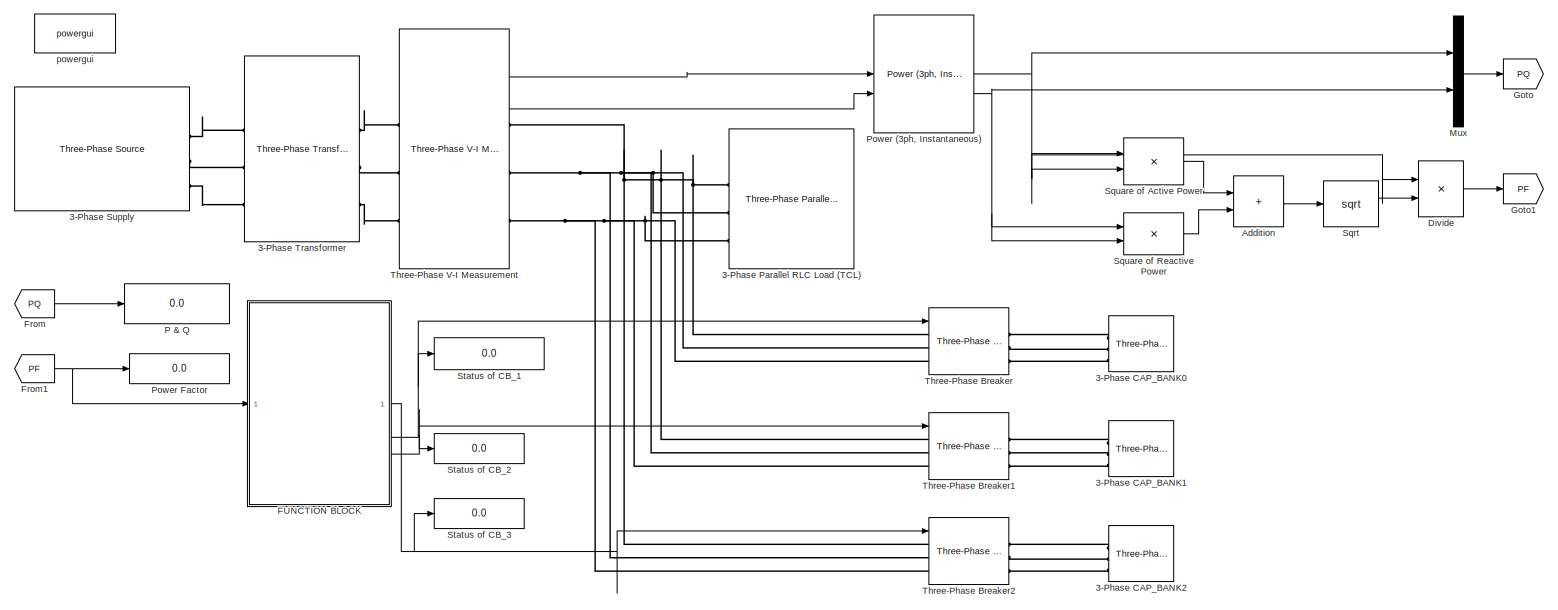
[diagram: root canvas - part 1/1, most of the canvas]
MODEL slx_506f2f6c2f00
KIND model
CONFIG AbsTol = auto
CONFIG EnableMultiTasking = off
CONFIG FixedStep = auto
CONFIG MaxStep = auto
CONFIG MinStep = auto
CONFIG RelTol = 1e-3
CONFIG SampleTimeConstraint = Unconstrained
CONFIG SolverName = ode23tb
CONFIG StartTime = 0.0
CONFIG StopTime = 0.2
BLOCK [Reference] 3-Phase CAP_BANK0  REF=spsThreePhaseParallelRLCLoadLib/Three-Phase
Parallel RLC Load
  AttributesFormatString = \n
  NameLocation = top
  SourceBlock = spsThreePhaseParallelRLCLoadLib/Three-Phase\nParallel RLC Load
  SourceType = Three-Phase Parallel RLC Load
BLOCK [Reference] 3-Phase CAP_BANK1  REF=spsThreePhaseParallelRLCLoadLib/Three-Phase
Parallel RLC Load
  AttributesFormatString = \n
  NameLocation = top
  SourceBlock = spsThreePhaseParallelRLCLoadLib/Three-Phase\nParallel RLC Load
  SourceType = Three-Phase Parallel RLC Load
BLOCK [Reference] 3-Phase CAP_BANK2  REF=spsThreePhaseParallelRLCLoadLib/Three-Phase
Parallel RLC Load
  AttributesFormatString = \n
  NameLocation = top
  SourceBlock = spsThreePhaseParallelRLCLoadLib/Three-Phase\nParallel RLC Load
  SourceType = Three-Phase Parallel RLC Load
BLOCK [Reference] 3-Phase Parallel RLC Load (TCL)  REF=spsThreePhaseParallelRLCLoadLib/Three-Phase
Parallel RLC Load
  AttributesFormatString = \n
  NameLocation = top
  SourceBlock = spsThreePhaseParallelRLCLoadLib/Three-Phase\nParallel RLC Load
  SourceType = Three-Phase Parallel RLC Load
BLOCK [Reference] 3-Phase Supply  REF=spsThreePhaseSourceLib/Three-Phase Source
  SourceBlock = spsThreePhaseSourceLib/Three-Phase Source
  SourceType = Three-Phase Source
BLOCK [Reference] 3-Phase Transformer   REF=spsThreePhaseTransformerTwoWindingsLib/Three-Phase
Transformer
(Two Windings)
  SourceBlock = spsThreePhaseTransformerTwoWindingsLib/Three-Phase\nTransformer\n(Two Windings)
  SourceType = Three-Phase Transformer (Two Windings)
BLOCK [Sum] Addition
  IconShape = rectangular
BLOCK [Product] Divide
  Inputs = */
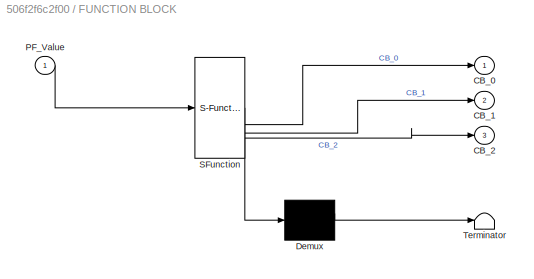
BLOCK [SubSystem] FUNCTION BLOCK
  ErrorFcn = Stateflow.Translate.translate
  PermitHierarchicalResolution = ExplicitOnly
  SFBlockType = MATLAB Function
  TreatAsAtomicUnit = on
BLOCK [Demux] FUNCTION BLOCK/ Demux 
  Outputs = 1
BLOCK [S-Function] FUNCTION BLOCK/ SFunction 
  EnableBusSupport = on
  FunctionName = sf_sfun
  PortCounts = [1 4]
  SFcnIsStateOwnerBlock = off
  SFunctionDeploymentMode = off
  Tag = Stateflow S-Function 2
BLOCK [Terminator] FUNCTION BLOCK/ Terminator 
BLOCK [Outport] FUNCTION BLOCK/CB_0
BLOCK [Outport] FUNCTION BLOCK/CB_1
  Port = 2
BLOCK [Outport] FUNCTION BLOCK/CB_2
  Port = 3
BLOCK [Inport] FUNCTION BLOCK/PF_Value
BLOCK [From] From
  GotoTag = PQ
BLOCK [From] From1
  GotoTag = PF
BLOCK [Goto] Goto
  GotoTag = PQ
BLOCK [Goto] Goto1
  GotoTag = PF
BLOCK [Mux] Mux
  DisplayOption = bar
  Inputs = 2
BLOCK [Display] P & Q
  Decimation = 4
BLOCK [Reference] Power (3ph, Instantaneous)  REF=spsPower3phInstantaneousLib/Power
(3ph, Instantaneous)
  SourceBlock = spsPower3phInstantaneousLib/Power\n(3ph, Instantaneous)
  SourceType = Power (3ph, Instantaneous)
BLOCK [Display] Power Factor
  Decimation = 4
BLOCK [Sqrt] Sqrt
BLOCK [Product] Square of Active Power
BLOCK [Product] Square of Reactive Power
BLOCK [Display] Status of CB_1
  Decimation = 1
BLOCK [Display] Status of CB_2
  Decimation = 1
BLOCK [Display] Status of CB_3
  Decimation = 1
BLOCK [Reference] Three-Phase Breaker  REF=spsThreePhaseBreakerLib/Three-Phase Breaker
  SourceBlock = spsThreePhaseBreakerLib/Three-Phase Breaker
  SourceType = Three-Phase Breaker
BLOCK [Reference] Three-Phase Breaker1  REF=spsThreePhaseBreakerLib/Three-Phase Breaker
  SourceBlock = spsThreePhaseBreakerLib/Three-Phase Breaker
  SourceType = Three-Phase Breaker
BLOCK [Reference] Three-Phase Breaker2  REF=spsThreePhaseBreakerLib/Three-Phase Breaker
  SourceBlock = spsThreePhaseBreakerLib/Three-Phase Breaker
  SourceType = Three-Phase Breaker
BLOCK [Reference] Three-Phase V-I Measurement  REF=spsThreePhaseVIMeasurementLib/Three-Phase
V-I Measurement
  SourceBlock = spsThreePhaseVIMeasurementLib/Three-Phase\nV-I Measurement
  SourceType = Three-Phase VI Measurement
BLOCK [Reference] powergui  REF=spspowerguiLib/powergui
  Priority = 1
  SourceBlock = spspowerguiLib/powergui
  SourceType = PSB option menu block
LINE Addition:1 -> Sqrt:1
LINE Divide:1 -> Goto1:1
NET FUNCTION BLOCK:1 -> Status of CB_3:1, Three-Phase Breaker2:1
NET FUNCTION BLOCK:2 -> Status of CB_1:1, Three-Phase Breaker:1
NET FUNCTION BLOCK:3 -> Status of CB_2:1, Three-Phase Breaker1:1
NET From1:1 -> FUNCTION BLOCK:1, Power Factor:1
LINE From:1 -> P & Q:1
LINE Mux:1 -> Goto:1
NET Power (3ph, Instantaneous):1 -> Divide:1, Mux:1, Square of Active Power:1, Square of Active Power:2
NET Power (3ph, Instantaneous):2 -> Mux:2, Square of Reactive Power:1, Square of Reactive Power:2
LINE Sqrt:1 -> Divide:2
LINE Square of Active Power:1 -> Addition:1
LINE Square of Reactive Power:1 -> Addition:2
LINE Three-Phase V-I Measurement:1 -> Power (3ph, Instantaneous):1
LINE Three-Phase V-I Measurement:2 -> Power (3ph, Instantaneous):2
PLINE 3-Phase CAP_BANK0:LConn1 -- Three-Phase Breaker:RConn1
PLINE 3-Phase CAP_BANK0:LConn2 -- Three-Phase Breaker:RConn2
PLINE 3-Phase CAP_BANK0:LConn3 -- Three-Phase Breaker:RConn3
PLINE 3-Phase CAP_BANK1:LConn1 -- Three-Phase Breaker1:RConn1
PLINE 3-Phase CAP_BANK1:LConn2 -- Three-Phase Breaker1:RConn2
PLINE 3-Phase CAP_BANK1:LConn3 -- Three-Phase Breaker1:RConn3
PLINE 3-Phase CAP_BANK2:LConn1 -- Three-Phase Breaker2:RConn1
PLINE 3-Phase CAP_BANK2:LConn2 -- Three-Phase Breaker2:RConn2
PLINE 3-Phase CAP_BANK2:LConn3 -- Three-Phase Breaker2:RConn3
PNET net1: 3-Phase Parallel RLC Load (TCL):LConn1 -- Three-Phase Breaker1:LConn1 -- Three-Phase Breaker2:LConn1 -- Three-Phase Breaker:LConn1 -- Three-Phase V-I Measurement:RConn1
PNET net2: 3-Phase Parallel RLC Load (TCL):LConn2 -- Three-Phase Breaker1:LConn2 -- Three-Phase Breaker2:LConn2 -- Three-Phase Breaker:LConn2 -- Three-Phase V-I Measurement:RConn2
PNET net3: 3-Phase Parallel RLC Load (TCL):LConn3 -- Three-Phase Breaker1:LConn3 -- Three-Phase Breaker2:LConn3 -- Three-Phase Breaker:LConn3 -- Three-Phase V-I Measurement:RConn3
PLINE 3-Phase Supply:RConn1 -- 3-Phase Transformer :LConn1
PLINE 3-Phase Supply:RConn2 -- 3-Phase Transformer :LConn2
PLINE 3-Phase Supply:RConn3 -- 3-Phase Transformer :LConn3
PLINE 3-Phase Transformer :RConn1 -- Three-Phase V-I Measurement:LConn1
PLINE 3-Phase Transformer :RConn2 -- Three-Phase V-I Measurement:LConn2
PLINE 3-Phase Transformer :RConn3 -- Three-Phase V-I Measurement:LConn3
note: NET lines group one-source signal fan-out (src -> all destinations, sorted); 1:1 wires keep LINE; PNET lines group multi-terminal physical nets as a canonical sorted terminal list (undirected conserving connections); 2-terminal nets keep the pairwise PLINE form
CHART FUNCTION BLOCK states=1 transitions=1
  STATE_LABEL 'eML_blk_kernel()'
  STATE_LABEL 'SCRIPT:\nfunction [CB_0,CB_1,CB_2] = fcn(PF_Value)\n\n    if (PF_Value<=0.60)\n        CB_0=1;\n        CB_1=0;\n        CB_2=0;\n    elseif (PF_Value<=0.75)\n        CB_0=0;\n        CB_1=1;\n        CB_2=0;\n    elseif (PF_Value<=0.85)\n        CB_0=0;\n        CB_1=0;\n        CB_2=1;\n    else\n        CB_0=0;\n        CB_1=0;\n        CB_2=1;\n    end'
CHART  states=0 transitions=0
